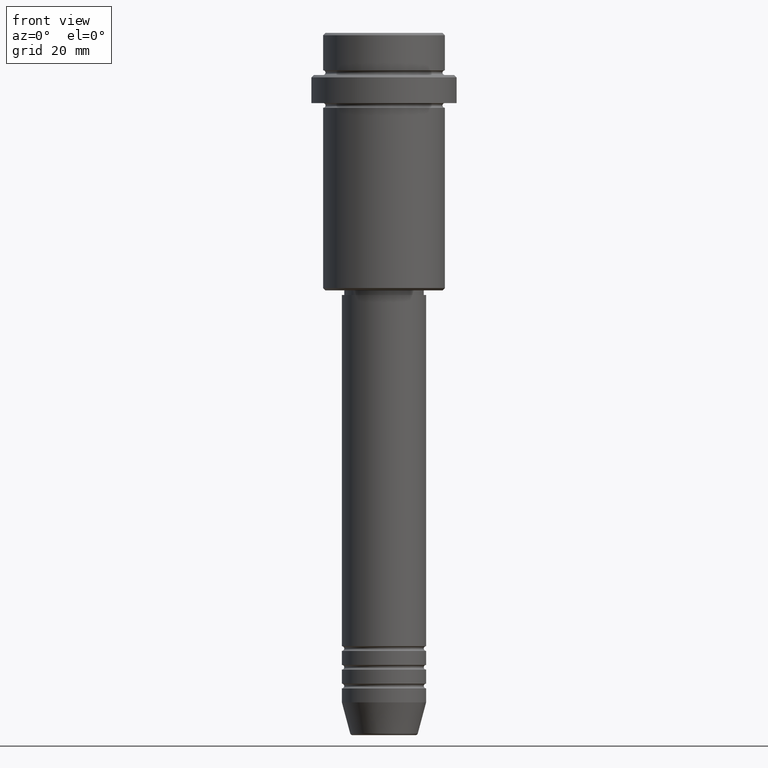
[diagram: clean part render]
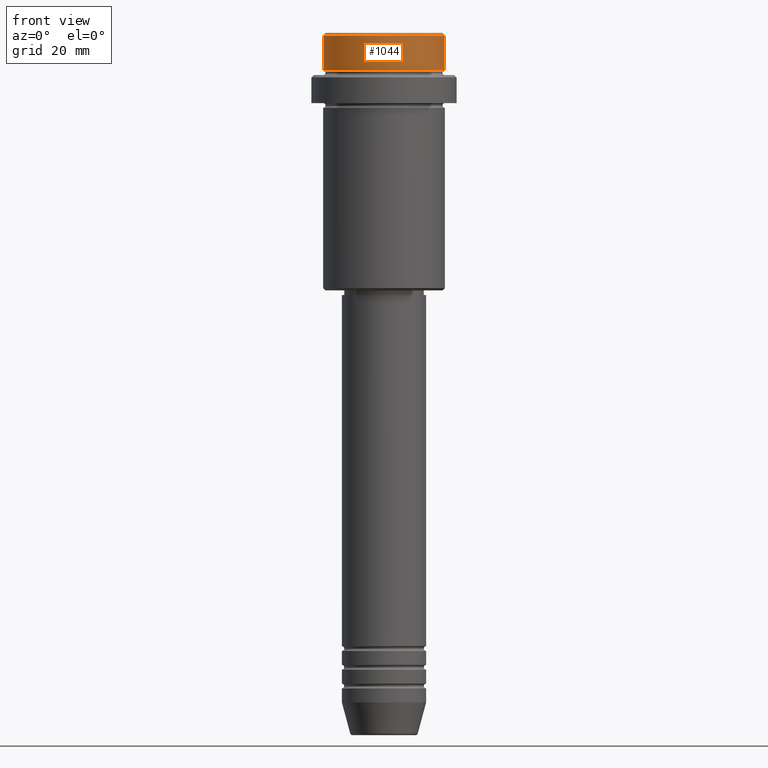
[diagram: same view with one face highlighted and labeled with its STEP entity id]
A machine part, front view. The second image highlights one B-rep face of the part: STEP entity #1044.
In plain terms, the highlighted cylindrical surface (partial cylindrical patch) has radius 13 mm, axis along (-0, -0, 1).
Its self-contained STEP definition (entity closure, byte-faithful):
#8 = VERTEX_POINT ( 'NONE', #1056 ) ;
#63 = CARTESIAN_POINT ( 'NONE',  ( -12.99999999999999822, 1.592040838891558898E-15, -0.4999999999999622524 ) ) ;
#168 = CARTESIAN_POINT ( 'NONE',  ( -12.99999999999999822, 1.592040838891558898E-15, -7.999999999999998224 ) ) ;
#172 = CARTESIAN_POINT ( 'NONE',  ( 12.99999999999999822, 0.000000000000000000, -7.999999999999998224 ) ) ;
#216 = DIRECTION ( 'NONE',  ( -0.000000000000000000, -0.000000000000000000, 1.000000000000000000 ) ) ;
#243 = FACE_OUTER_BOUND ( 'NONE', #935, .T. ) ;
#254 = DIRECTION ( 'NONE',  ( 0.000000000000000000, 0.000000000000000000, -1.000000000000000000 ) ) ;
#260 = CARTESIAN_POINT ( 'NONE',  ( 0.000000000000000000, 0.000000000000000000, 0.000000000000000000 ) ) ;
#392 = DIRECTION ( 'NONE',  ( 1.000000000000000000, 0.000000000000000000, 0.000000000000000000 ) ) ;
#395 = EDGE_CURVE ( 'NONE', #639, #735, #875, .T. ) ;
#503 = CIRCLE ( 'NONE', #1302, 12.99999999999999822 ) ;
#532 = ORIENTED_EDGE ( 'NONE', *, *, #1079, .T. ) ;
#572 = CARTESIAN_POINT ( 'NONE',  ( 0.000000000000000000, 0.000000000000000000, -0.4999999999999622524 ) ) ;
#588 = VECTOR ( 'NONE', #216, 1000.000000000000000 ) ;
#629 = AXIS2_PLACEMENT_3D ( 'NONE', #811, #1248, #817 ) ;
#639 = VERTEX_POINT ( 'NONE', #168 ) ;
#655 = DIRECTION ( 'NONE',  ( -0.000000000000000000, -0.000000000000000000, 1.000000000000000000 ) ) ;
#666 = VERTEX_POINT ( 'NONE', #172 ) ;
#683 = CYLINDRICAL_SURFACE ( 'NONE', #747, 12.99999999999999822 ) ;
#735 = VERTEX_POINT ( 'NONE', #63 ) ;
#747 = AXIS2_PLACEMENT_3D ( 'NONE', #260, #895, #392 ) ;
#751 = CARTESIAN_POINT ( 'NONE',  ( 12.99999999999999822, 0.000000000000000000, 0.000000000000000000 ) ) ;
#755 = CARTESIAN_POINT ( 'NONE',  ( -12.99999999999999822, 1.592040838891558898E-15, 0.000000000000000000 ) ) ;
#811 = CARTESIAN_POINT ( 'NONE',  ( 0.000000000000000000, 0.000000000000000000, -7.999999999999998224 ) ) ;
#817 = DIRECTION ( 'NONE',  ( 1.000000000000000000, 0.000000000000000000, 0.000000000000000000 ) ) ;
#827 = CIRCLE ( 'NONE', #629, 12.99999999999999822 ) ;
#875 = LINE ( 'NONE', #755, #588 ) ;
#895 = DIRECTION ( 'NONE',  ( -0.000000000000000000, -0.000000000000000000, 1.000000000000000000 ) ) ;
#935 = EDGE_LOOP ( 'NONE', ( #1246, #532, #1059, #1399 ) ) ;
#1038 = EDGE_CURVE ( 'NONE', #8, #735, #503, .T. ) ;
#1044 = ADVANCED_FACE ( 'NONE', ( #243 ), #683, .T. ) ;
#1056 = CARTESIAN_POINT ( 'NONE',  ( 12.99999999999999822, 0.000000000000000000, -0.4999999999999622524 ) ) ;
#1059 = ORIENTED_EDGE ( 'NONE', *, *, #1262, .T. ) ;
#1079 = EDGE_CURVE ( 'NONE', #639, #666, #827, .T. ) ;
#1159 = VECTOR ( 'NONE', #655, 1000.000000000000000 ) ;
#1173 = LINE ( 'NONE', #751, #1159 ) ;
#1232 = DIRECTION ( 'NONE',  ( 1.000000000000000000, 0.000000000000000000, 0.000000000000000000 ) ) ;
#1246 = ORIENTED_EDGE ( 'NONE', *, *, #395, .F. ) ;
#1248 = DIRECTION ( 'NONE',  ( -0.000000000000000000, -0.000000000000000000, 1.000000000000000000 ) ) ;
#1262 = EDGE_CURVE ( 'NONE', #666, #8, #1173, .T. ) ;
#1302 = AXIS2_PLACEMENT_3D ( 'NONE', #572, #254, #1232 ) ;
#1399 = ORIENTED_EDGE ( 'NONE', *, *, #1038, .T. ) ;